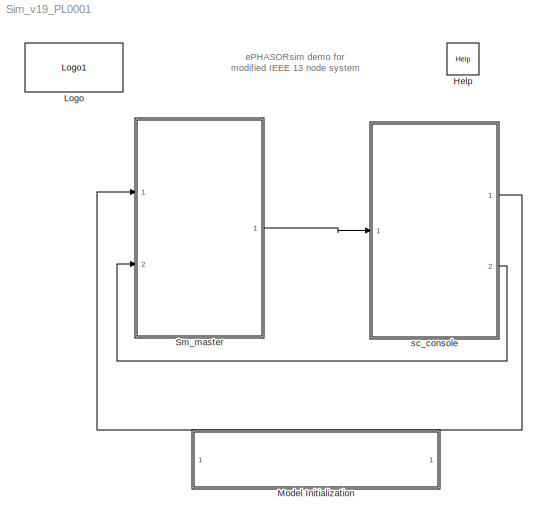
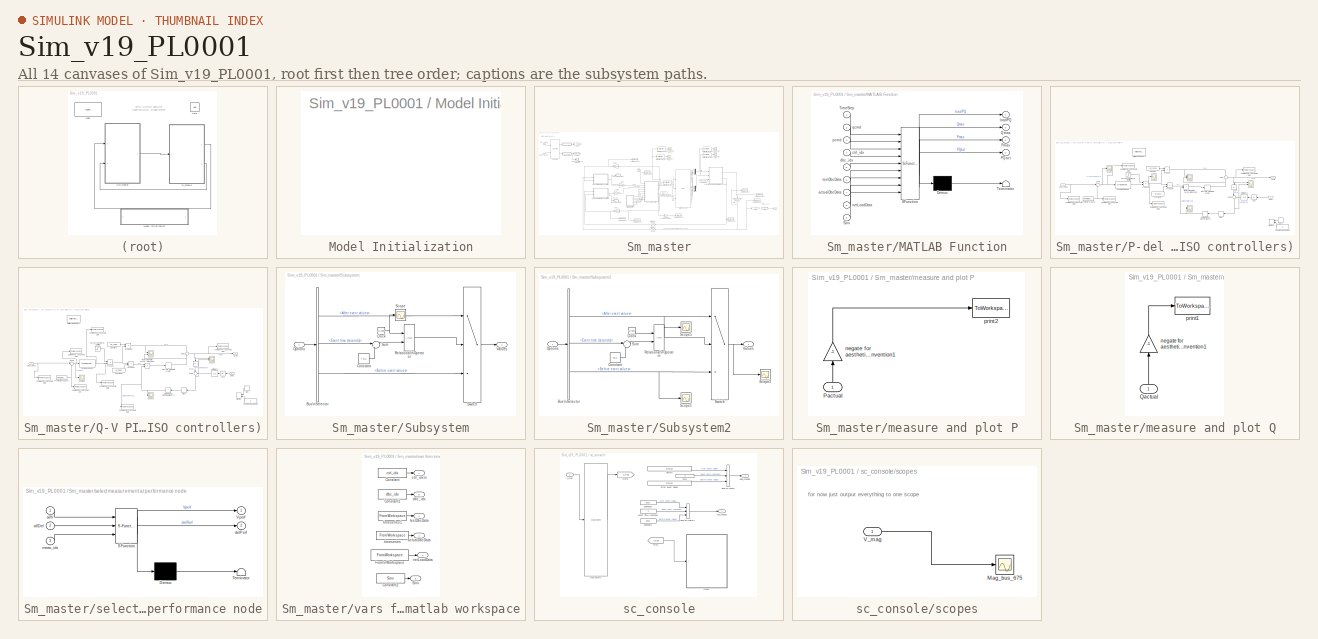
[diagram: thumbnail index - all 14 canvases of the model, root first then tree order]
MODEL Sim_v19_PL0001
KIND model
CONFIG InitFcn = Ts=0.1;
CONFIG PostLoadFcn = Ts=0.1;
CONFIG PreLoadFcn = Ts=0.1;
CONFIG StartFcn = Ts=0.1;
BLOCK [Reference] Help  REF=opal_lib/Help
  Ports = []
  SID = 168
  SourceBlock = opal_lib/Help
  SourceType = OpDoc
  docfile = ../help/ePH_IEEE13.html
BLOCK [Reference] Logo  REF=opal_lib/Logo1
  Ports = []
  SID = 169
  SourceBlock = opal_lib/Logo1
  SourceType = Opal-RT logo
  vide = []
BLOCK [SubSystem] Model Initialization
  CopyFcn = set_param(gcb,'LinkStatus','none')
  Ports = []
  RequestExecContextInheritance = off
  SID = 107
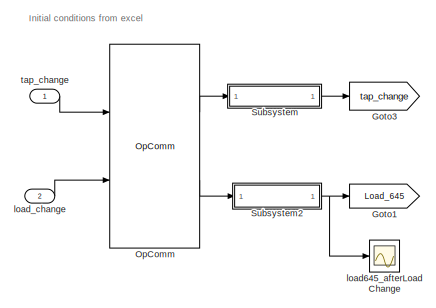
[diagram: Sm_master - part 1/3, top left region]
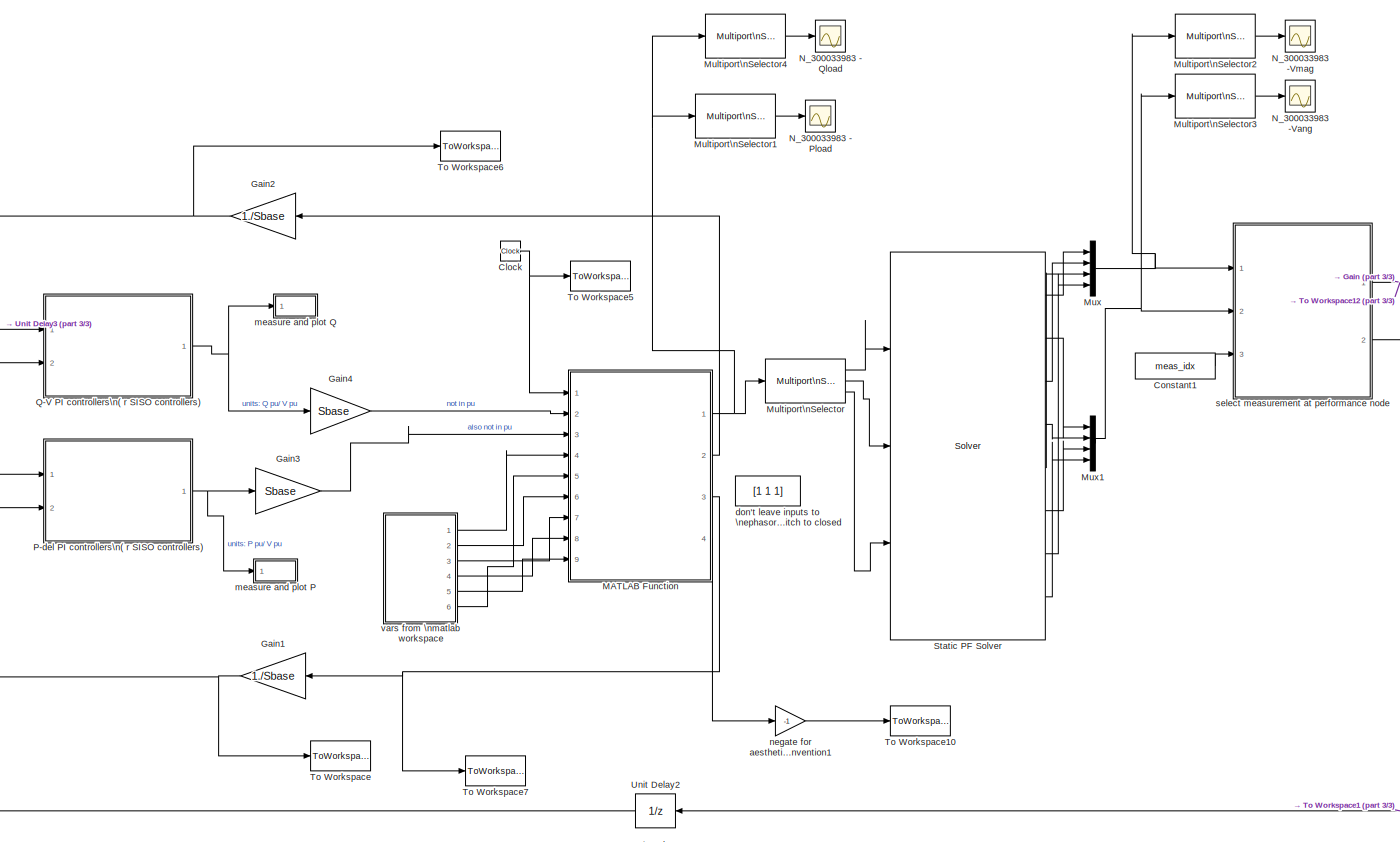
[diagram: Sm_master - part 2/3, center side, full height]
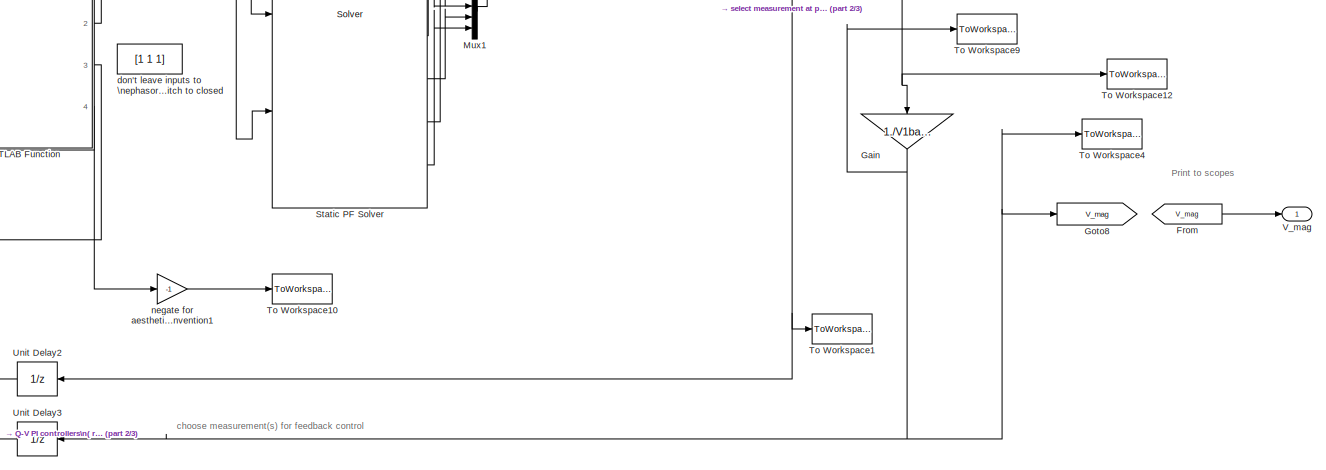
[diagram: Sm_master - part 3/3, bottom right region]
BLOCK [SubSystem] Sm_master
  Ports = [2, 1]
  RequestExecContextInheritance = off
  SID = 44
BLOCK [Clock] Sm_master/Clock
  SID = 2045
BLOCK [Constant] Sm_master/Constant1
  SID = 2028
  Value = meas_idx
BLOCK [From] Sm_master/From
  GotoTag = V_mag
  SID = 533
BLOCK [Gain] Sm_master/Gain
  Gain = 1./V1base
  OutDataTypeStr = Inherit: Inherit via internal rule
  ParamDataTypeStr = Inherit: Inherit via internal rule
  SID = 2368
  SaturateOnIntegerOverflow = off
BLOCK [Gain] Sm_master/Gain1
  Gain = 1./Sbase
  OutDataTypeStr = Inherit: Inherit via internal rule
  ParamDataTypeStr = Inherit: Inherit via internal rule
  SID = 2378
  SaturateOnIntegerOverflow = off
BLOCK [Gain] Sm_master/Gain2
  Gain = 1./Sbase
  OutDataTypeStr = Inherit: Inherit via internal rule
  ParamDataTypeStr = Inherit: Inherit via internal rule
  SID = 2379
  SaturateOnIntegerOverflow = off
BLOCK [Gain] Sm_master/Gain3
  Gain = Sbase
  OutDataTypeStr = Inherit: Inherit via internal rule
  ParamDataTypeStr = Inherit: Inherit via internal rule
  SID = 2374
  SaturateOnIntegerOverflow = off
BLOCK [Gain] Sm_master/Gain4
  Gain = Sbase
  OutDataTypeStr = Inherit: Inherit via internal rule
  ParamDataTypeStr = Inherit: Inherit via internal rule
  SID = 2375
  SaturateOnIntegerOverflow = off
BLOCK [Goto] Sm_master/Goto1
  GotoTag = Load_645
  SID = 538
BLOCK [Goto] Sm_master/Goto3
  GotoTag = tap_change
  SID = 539
BLOCK [Goto] Sm_master/Goto8
  GotoTag = V_mag
  SID = 627
BLOCK [SubSystem] Sm_master/MATLAB Function
  ErrorFcn = Stateflow.Translate.translate
  PermitHierarchicalResolution = ExplicitOnly
  Ports = [9, 4]
  RequestExecContextInheritance = off
  SFBlockType = MATLAB Function
  SID = 1962
  TreatAsAtomicUnit = on
BLOCK [Demux] Sm_master/MATLAB Function/ Demux 
  Outputs = 1
  Ports = [1, 1]
  SID = 1962::17
BLOCK [S-Function] Sm_master/MATLAB Function/ SFunction 
  EnableBusSupport = on
  FunctionName = sf_sfun
  PortCounts = [9 5]
  Ports = [9, 5]
  SID = 1962::16
  Tag = Stateflow S-Function Sim_v19_PL0001 2
BLOCK [Terminator] Sm_master/MATLAB Function/ Terminator 
  SID = 1962::18
BLOCK [Outport] Sm_master/MATLAB Function/PQact
  IconDisplay = Port number
  Port = 4
  SID = 1962::43
BLOCK [Outport] Sm_master/MATLAB Function/Pmax
  IconDisplay = Port number
  Port = 3
  SID = 1962::35
BLOCK [Outport] Sm_master/MATLAB Function/Qmax
  IconDisplay = Port number
  Port = 2
  SID = 1962::36
BLOCK [Inport] Sm_master/MATLAB Function/Sinv
  IconDisplay = Port number
  Port = 9
  SID = 1962::33
BLOCK [Inport] Sm_master/MATLAB Function/TimeStep
  IconDisplay = Port number
  SID = 1962::41
BLOCK [Inport] Sm_master/MATLAB Function/actualDbcData
  IconDisplay = Port number
  Port = 7
  SID = 1962::54
BLOCK [Inport] Sm_master/MATLAB Function/ctrl_idx
  IconDisplay = Port number
  Port = 4
  SID = 1962::28
BLOCK [Inport] Sm_master/MATLAB Function/dbc_idx
  IconDisplay = Port number
  Port = 5
  SID = 1962::45
BLOCK [Outport] Sm_master/MATLAB Function/loadPQ
  IconDisplay = Port number
  SID = 1962::5
BLOCK [Inport] Sm_master/MATLAB Function/netLoadData
  IconDisplay = Port number
  Port = 8
  SID = 1962::31
BLOCK [Inport] Sm_master/MATLAB Function/pcmd
  IconDisplay = Port number
  Port = 3
  SID = 1962::1
BLOCK [Inport] Sm_master/MATLAB Function/qcmd
  IconDisplay = Port number
  Port = 2
  SID = 1962::19
BLOCK [Inport] Sm_master/MATLAB Function/testDbcData
  IconDisplay = Port number
  Port = 6
  SID = 1962::46
BLOCK [Reference] Sm_master/Multiport\nSelector  REF=dspindex/Multiport\nSelector
  Ports = [1, 3]
  SID = 2454
  SourceBlock = dspindex/Multiport\nSelector
  SourceType = Multiport Selector
  idxCellArray = { [1:254], [255: 508], [509:606]}
  idxErrMode = Clip Index
  rowsOrCols = Rows
BLOCK [Reference] Sm_master/Multiport\nSelector1  REF=dspindex/Multiport\nSelector
  Ports = [1, 1]
  SID = 2459
  SourceBlock = dspindex/Multiport\nSelector
  SourceType = Multiport Selector
  idxCellArray = { [1:3]}
  idxErrMode = Clip Index
  rowsOrCols = Rows
BLOCK [Reference] Sm_master/Multiport\nSelector2  REF=dspindex/Multiport\nSelector
  Ports = [1, 1]
  SID = 2460
  SourceBlock = dspindex/Multiport\nSelector
  SourceType = Multiport Selector
  idxCellArray = { [577:579]}
  idxErrMode = Clip Index
  rowsOrCols = Rows
BLOCK [Reference] Sm_master/Multiport\nSelector3  REF=dspindex/Multiport\nSelector
  Ports = [1, 1]
  SID = 2462
  SourceBlock = dspindex/Multiport\nSelector
  SourceType = Multiport Selector
  idxCellArray = { [577:579]}
  idxErrMode = Clip Index
  rowsOrCols = Rows
BLOCK [Reference] Sm_master/Multiport\nSelector4  REF=dspindex/Multiport\nSelector
  Ports = [1, 1]
  SID = 2464
  SourceBlock = dspindex/Multiport\nSelector
  SourceType = Multiport Selector
  idxCellArray = { [304:306]}
  idxErrMode = Clip Index
  rowsOrCols = Rows
BLOCK [Mux] Sm_master/Mux
  DisplayOption = bar
  Ports = [4, 1]
  SID = 2445
BLOCK [Mux] Sm_master/Mux1
  DisplayOption = bar
  Ports = [4, 1]
  SID = 2446
BLOCK [Scope] Sm_master/N_300033983 - Pload
  Floating = off
  NumInputPorts = 1
  Ports = [1]
  SID = 2456
  SaveName = ScopeData5
BLOCK [Scope] Sm_master/N_300033983 - Qload
  Floating = off
  NumInputPorts = 1
  Ports = [1]
  SID = 2465
  SaveName = ScopeData11
BLOCK [Scope] Sm_master/N_300033983 -Vang
  Floating = off
  NumInputPorts = 1
  Ports = [1]
  SID = 2463
  SaveName = ScopeData7
BLOCK [Scope] Sm_master/N_300033983 -Vmag
  Floating = off
  NumInputPorts = 1
  Ports = [1]
  SID = 2461
  SaveName = ScopeData10
BLOCK [Reference] Sm_master/OpComm  REF=rtlab/OpComm
  Interpolation = on
  Missed_Data = off
  Offset = off
  Ports = [2, 2]
  SID = 542
  Samples = off
  Sim_Time = off
  SourceBlock = rtlab/OpComm
  SourceType = RT-LAB OpComm
  Synchronization = on
  Threshold = 1.0
  dynSigOut = off
  from_console = 1
  groupe_acq = 1
  nbport = 2
  st = 0
  subsys_rate = 0
  warning_done = off
  writeOpCommFile = off
BLOCK [SubSystem] Sm_master/P-del PI controllers\n( r SISO controllers)
  Ports = [2, 1]
  RequestExecContextInheritance = off
  SID = 2089
BLOCK [Abs] Sm_master/P-del PI controllers\n( r SISO controllers)/Abs
  SID = 2092
  SaturateOnIntegerOverflow = off
BLOCK [Abs] Sm_master/P-del PI controllers\n( r SISO controllers)/Abs1
  SID = 2332
  SaturateOnIntegerOverflow = off
BLOCK [Constant] Sm_master/P-del PI controllers\n( r SISO controllers)/Constant
  SID = 2093
  Value = Kp_vang
BLOCK [Constant] Sm_master/P-del PI controllers\n( r SISO controllers)/Constant2
  SID = 2094
  Value = Ki_vang
BLOCK [DiscreteIntegrator] Sm_master/P-del PI controllers\n( r SISO controllers)/Discrete-Time\nIntegrator
  InitialConditionSetting = State (most efficient)
  Ports = [1, 2]
  SID = 2399
  SampleTime = Ts
  ShowSaturationPort = on
  gainval = 1
BLOCK [FromWorkspace] Sm_master/P-del PI controllers\n( r SISO controllers)/From\nWorkspace
  SID = 2296
  SampleTime = 0
  VariableName = vang_ref
  ZeroCross = on
BLOCK [Constant] Sm_master/P-del PI controllers\n( r SISO controllers)/If negative sign, output 1
  SID = 2434
  Value = 0
BLOCK [MinMax] Sm_master/P-del PI controllers\n( r SISO controllers)/MinMax1
  Function = max
  InputSameDT = off
  Inputs = 2
  Ports = [2, 1]
  SID = 2435
  SaturateOnIntegerOverflow = off
BLOCK [Reference] Sm_master/P-del PI controllers\n( r SISO controllers)/Multiport\nSelector2  REF=dspindex/Multiport\nSelector
  Ports = [1, 1]
  SID = 2430
  SourceBlock = dspindex/Multiport\nSelector
  SourceType = Multiport Selector
  idxCellArray = {ridx}
  idxErrMode = Clip Index
  rowsOrCols = Columns
BLOCK [Relay] Sm_master/P-del PI controllers\n( r SISO controllers)/Output not sat when input is 0 or 1 
  InputProcessing = Elements as channels (sample based)
  OffSwitchValue = -0.5
  OnSwitchValue = -0.5
  SID = 2433
BLOCK [Outport] Sm_master/P-del PI controllers\n( r SISO controllers)/Pcmd
  IconDisplay = Port number
  SID = 2120
BLOCK [Inport] Sm_master/P-del PI controllers\n( r SISO controllers)/Pmax
  IconDisplay = Port number
  Port = 2
  SID = 2091
BLOCK [Product] Sm_master/P-del PI controllers\n( r SISO controllers)/Product
  InputSameDT = off
  OutDataTypeStr = Inherit: Inherit via internal rule
  Ports = [2, 1]
  RndMeth = Floor
  SID = 2389
  SaturateOnIntegerOverflow = off
BLOCK [Product] Sm_master/P-del PI controllers\n( r SISO controllers)/Product1
  InputSameDT = off
  OutDataTypeStr = Inherit: Inherit via internal rule
  Ports = [2, 1]
  RndMeth = Floor
  SID = 2107
  SaturateOnIntegerOverflow = off
BLOCK [Product] Sm_master/P-del PI controllers\n( r SISO controllers)/Product4
  InputSameDT = off
  OutDataTypeStr = Inherit: Inherit via internal rule
  Ports = [2, 1]
  RndMeth = Floor
  SID = 2109
  SaturateOnIntegerOverflow = off
BLOCK [Scope] Sm_master/P-del PI controllers\n( r SISO controllers)/Scope1
  DataFormat = StructureWithTime
  Floating = off
  LimitDataPoints = off
  NumInputPorts = 2
  Ports = [2]
  SID = 2111
  SaveName = ScopeData8
  ShowLegends = on
  YMax = 6.25~5
  YMin = -46.25~-5
BLOCK [Scope] Sm_master/P-del PI controllers\n( r SISO controllers)/Scope2
  DataFormat = StructureWithTime
  Floating = off
  LimitDataPoints = off
  NumInputPorts = 2
  Ports = [2]
  SID = 2112
  SaveName = ScopeData2
  YMax = 2.625~5
  YMin = -23.625~-5
BLOCK [Scope] Sm_master/P-del PI controllers\n( r SISO controllers)/Scope3
  DataFormat = StructureWithTime
  Floating = off
  LimitDataPoints = off
  NumInputPorts = 1
  Ports = [1]
  SID = 2113
  SaveName = ScopeData9
  ShowLegends = on
  YMax = 1.125
  YMin = -0.125
BLOCK [Scope] Sm_master/P-del PI controllers\n( r SISO controllers)/Scope4
  DataFormat = StructureWithTime
  Floating = off
  LimitDataPoints = off
  NumInputPorts = 1
  Ports = [1]
  SID = 2359
  YMax = 1.125
  YMin = -0.125
BLOCK [Scope] Sm_master/P-del PI controllers\n( r SISO controllers)/Scope5
  DataFormat = StructureWithTime
  Floating = off
  LimitDataPoints = off
  NumInputPorts = 1
  Ports = [1]
  SID = 2385
  SaveName = ScopeData3
  ShowLegends = on
  YMax = 1.125
  YMin = -0.125
BLOCK [Signum] Sm_master/P-del PI controllers\n( r SISO controllers)/Sign1
  SID = 2436
BLOCK [Signum] Sm_master/P-del PI controllers\n( r SISO controllers)/Sign2
  SID = 2440
BLOCK [Sum] Sm_master/P-del PI controllers\n( r SISO controllers)/Sum1
  IconShape = round
  InputSameDT = off
  Inputs = +|+
  OutDataTypeStr = Inherit: Inherit via internal rule
  Ports = [2, 1]
  SID = 2115
  SaturateOnIntegerOverflow = off
BLOCK [Sum] Sm_master/P-del PI controllers\n( r SISO controllers)/Sum3
  IconShape = round
  InputSameDT = off
  Inputs = |-+
  OutDataTypeStr = Inherit: Inherit via internal rule
  Ports = [2, 1]
  SID = 2117
  SaturateOnIntegerOverflow = off
BLOCK [Sum] Sm_master/P-del PI controllers\n( r SISO controllers)/Sum4
  IconShape = round
  InputSameDT = off
  Inputs = |+-
  OutDataTypeStr = Inherit: Inherit via internal rule
  Ports = [2, 1]
  SID = 2303
  SaturateOnIntegerOverflow = off
BLOCK [UnitDelay] Sm_master/P-del PI controllers\n( r SISO controllers)/Unit Delay2
  InitialCondition = Sinv
  InputProcessing = Elements as channels (sample based)
  SID = 2299
  SampleTime = Ts
BLOCK [Inport] Sm_master/P-del PI controllers\n( r SISO controllers)/Vang_meas
  IconDisplay = Port number
  SID = 2090
BLOCK [Reference] Sm_master/P-del PI controllers\n( r SISO controllers)/Variable\nSelector  REF=dspindex/Variable\nSelector
  Elements = [ridx]
  FillMode = on
  FillValues = 0
  IdxMode = Fixed
  NumInputs = 1
  Ports = [1, 1]
  SID = 2429
  ShowPortLabels = off
  SourceBlock = dspindex/Variable\nSelector
  SourceType = Variable Selector
  ZerOneIdxMode = One-based
  errmode = Clip Index
  rowsOrCols = Columns
BLOCK [Product] Sm_master/P-del PI controllers\n( r SISO controllers)/if saturated, mult by zero\n (zero out integrator)
  InputSameDT = off
  OutDataTypeStr = Inherit: Inherit via internal rule
  Ports = [2, 1]
  RndMeth = Floor
  SID = 2118
  SaturateOnIntegerOverflow = off
BLOCK [ToWorkspace] Sm_master/P-del PI controllers\n( r SISO controllers)/sample every second to plot
  MaxDataPoints = inf
  Ports = [1]
  SID = 2119
  SampleTime = -1
  VariableName = vang_ref_sig
BLOCK [ToWorkspace] Sm_master/P-del PI controllers\n( r SISO controllers)/sample every second to plot1
  MaxDataPoints = inf
  Ports = [1]
  SID = 2355
  SampleTime = -1
  VariableName = Pcmd
BLOCK [ToWorkspace] Sm_master/P-del PI controllers\n( r SISO controllers)/sample every second to plot2
  MaxDataPoints = inf
  Ports = [1]
  SID = 2388
  SampleTime = -1
  VariableName = test
BLOCK [ToWorkspace] Sm_master/P-del PI controllers\n( r SISO controllers)/sample every second to plot3
  MaxDataPoints = inf
  Ports = [1]
  SID = 2361
  SampleTime = -1
  VariableName = vang_meas
BLOCK [ToWorkspace] Sm_master/P-del PI controllers\n( r SISO controllers)/sample every second to plot4
  MaxDataPoints = inf
  Ports = [1]
  SID = 2408
  SampleTime = -1
  VariableName = vang_err
BLOCK [Step] Sm_master/P-del PI controllers\n( r SISO controllers)/turn on controller at right time
  SID = 2295
  SampleTime = 0
  Time = Vang_ctrlStart
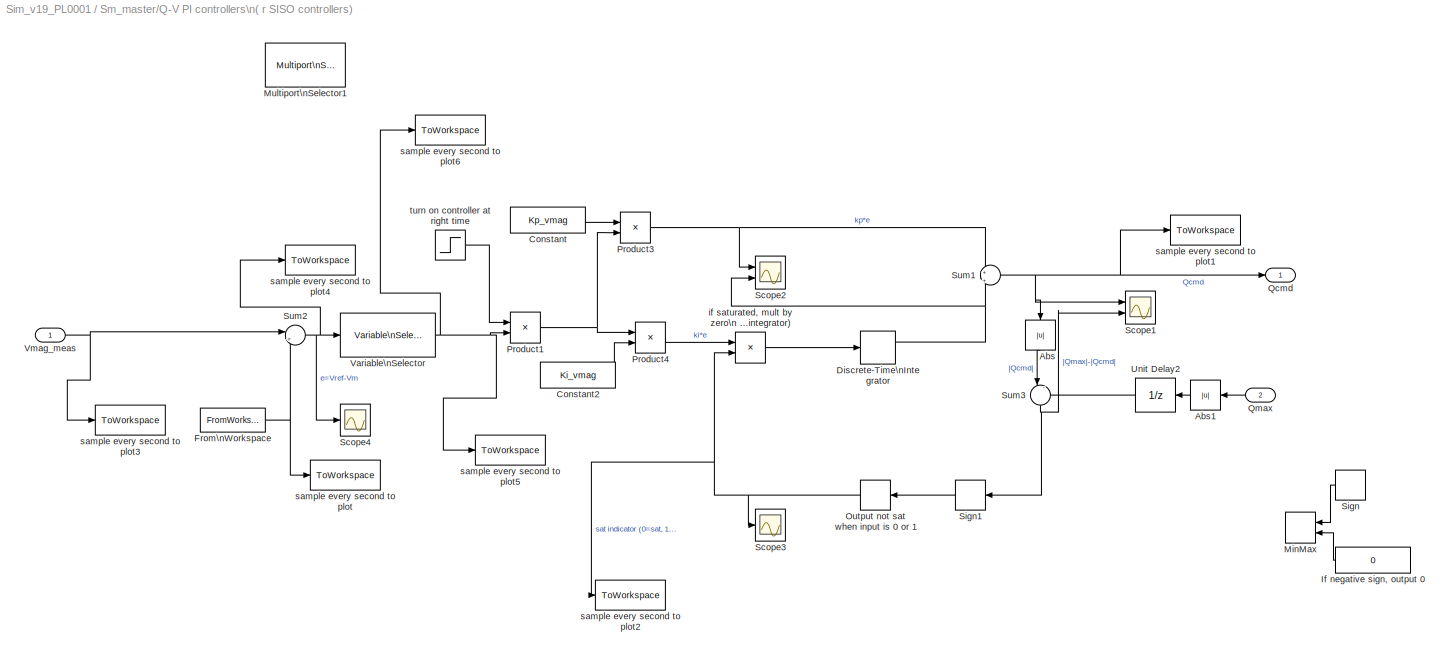
BLOCK [SubSystem] Sm_master/Q-V PI controllers\n( r SISO controllers)
  Ports = [2, 1]
  RequestExecContextInheritance = off
  SID = 2084
BLOCK [Abs] Sm_master/Q-V PI controllers\n( r SISO controllers)/Abs
  SID = 2053
  SaturateOnIntegerOverflow = off
BLOCK [Abs] Sm_master/Q-V PI controllers\n( r SISO controllers)/Abs1
  SID = 2331
  SaturateOnIntegerOverflow = off
BLOCK [Constant] Sm_master/Q-V PI controllers\n( r SISO controllers)/Constant
  SID = 2054
  Value = Kp_vmag
BLOCK [Constant] Sm_master/Q-V PI controllers\n( r SISO controllers)/Constant2
  SID = 2055
  Value = Ki_vmag
BLOCK [DiscreteIntegrator] Sm_master/Q-V PI controllers\n( r SISO controllers)/Discrete-Time\nIntegrator
  InitialConditionSetting = State (most efficient)
  Ports = [1, 2]
  SID = 2400
  SampleTime = Ts
  ShowSaturationPort = on
  gainval = 1
BLOCK [FromWorkspace] Sm_master/Q-V PI controllers\n( r SISO controllers)/From\nWorkspace
  SID = 2297
  SampleTime = 0
  VariableName = vmag_ref
  ZeroCross = on
BLOCK [Constant] Sm_master/Q-V PI controllers\n( r SISO controllers)/If negative sign, output 0
  SID = 2403
  Value = 0
BLOCK [MinMax] Sm_master/Q-V PI controllers\n( r SISO controllers)/MinMax
  Function = max
  InputSameDT = off
  Inputs = 2
  Ports = [2, 1]
  SID = 2402
  SaturateOnIntegerOverflow = off
BLOCK [Reference] Sm_master/Q-V PI controllers\n( r SISO controllers)/Multiport\nSelector1  REF=dspindex/Multiport\nSelector
  Ports = [1, 1]
  SID = 2413
  SourceBlock = dspindex/Multiport\nSelector
  SourceType = Multiport Selector
  idxCellArray = {ridx}
  idxErrMode = Clip Index
  rowsOrCols = Columns
BLOCK [Relay] Sm_master/Q-V PI controllers\n( r SISO controllers)/Output not sat when input is 0 or 1
  InputProcessing = Elements as channels (sample based)
  OffSwitchValue = -0.5
  OnSwitchValue = -0.5
  SID = 2432
BLOCK [Product] Sm_master/Q-V PI controllers\n( r SISO controllers)/Product1
  InputSameDT = off
  OutDataTypeStr = Inherit: Inherit via internal rule
  Ports = [2, 1]
  RndMeth = Floor
  SID = 2069
  SaturateOnIntegerOverflow = off
BLOCK [Product] Sm_master/Q-V PI controllers\n( r SISO controllers)/Product3
  InputSameDT = off
  OutDataTypeStr = Inherit: Inherit via internal rule
  Ports = [2, 1]
  RndMeth = Floor
  SID = 2070
  SaturateOnIntegerOverflow = off
BLOCK [Product] Sm_master/Q-V PI controllers\n( r SISO controllers)/Product4
  InputSameDT = off
  OutDataTypeStr = Inherit: Inherit via internal rule
  Ports = [2, 1]
  RndMeth = Floor
  SID = 2071
  SaturateOnIntegerOverflow = off
BLOCK [Outport] Sm_master/Q-V PI controllers\n( r SISO controllers)/Qcmd
  IconDisplay = Port number
  SID = 2087
BLOCK [Inport] Sm_master/Q-V PI controllers\n( r SISO controllers)/Qmax
  IconDisplay = Port number
  Port = 2
  SID = 2086
BLOCK [Scope] Sm_master/Q-V PI controllers\n( r SISO controllers)/Scope1
  DataFormat = StructureWithTime
  Floating = off
  LimitDataPoints = off
  NumInputPorts = 2
  Ports = [2]
  SID = 2073
  SaveName = ScopeData8
  ShowLegends = on
  YMax = 6.25~5
  YMin = -46.25~-5
BLOCK [Scope] Sm_master/Q-V PI controllers\n( r SISO controllers)/Scope2
  DataFormat = StructureWithTime
  Floating = off
  LimitDataPoints = off
  NumInputPorts = 2
  Ports = [2]
  SID = 2074
  SaveName = ScopeData2
  ShowLegends = on
  YMax = 2.625~5
  YMin = -23.625~-5
BLOCK [Scope] Sm_master/Q-V PI controllers\n( r SISO controllers)/Scope3
  DataFormat = StructureWithTime
  Floating = off
  LimitDataPoints = off
  NumInputPorts = 1
  Ports = [1]
  SID = 2075
  SaveName = ScopeData9
  ShowLegends = on
  YMax = 1.125
  YMin = -0.125
BLOCK [Scope] Sm_master/Q-V PI controllers\n( r SISO controllers)/Scope4
  DataFormat = StructureWithTime
  Floating = off
  LimitDataPoints = off
  NumInputPorts = 1
  Ports = [1]
  SID = 2382
  SaveName = ScopeData4
  ShowLegends = on
  YMax = 1.125
  YMin = -0.125
BLOCK [Signum] Sm_master/Q-V PI controllers\n( r SISO controllers)/Sign
  SID = 2401
BLOCK [Signum] Sm_master/Q-V PI controllers\n( r SISO controllers)/Sign1
  SID = 2439
BLOCK [Sum] Sm_master/Q-V PI controllers\n( r SISO controllers)/Sum1
  IconShape = round
  InputSameDT = off
  Inputs = +|+
  OutDataTypeStr = Inherit: Inherit via internal rule
  Ports = [2, 1]
  SID = 2077
  SaturateOnIntegerOverflow = off
BLOCK [Sum] Sm_master/Q-V PI controllers\n( r SISO controllers)/Sum2
  IconShape = round
  InputSameDT = off
  Inputs = |+-
  OutDataTypeStr = Inherit: Inherit via internal rule
  Ports = [2, 1]
  SID = 2078
  SaturateOnIntegerOverflow = off
BLOCK [Sum] Sm_master/Q-V PI controllers\n( r SISO controllers)/Sum3
  IconShape = round
  InputSameDT = off
  Inputs = |-+
  OutDataTypeStr = Inherit: Inherit via internal rule
  Ports = [2, 1]
  SID = 2079
  SaturateOnIntegerOverflow = off
BLOCK [UnitDelay] Sm_master/Q-V PI controllers\n( r SISO controllers)/Unit Delay2
  InitialCondition = Sinv
  InputProcessing = Elements as channels (sample based)
  SID = 2298
  SampleTime = Ts
BLOCK [Reference] Sm_master/Q-V PI controllers\n( r SISO controllers)/Variable\nSelector  REF=dspindex/Variable\nSelector
  Elements = [ridx]
  FillMode = on
  FillValues = 0
  IdxMode = Fixed
  NumInputs = 1
  Ports = [1, 1]
  SID = 2428
  ShowPortLabels = off
  SourceBlock = dspindex/Variable\nSelector
  SourceType = Variable Selector
  ZerOneIdxMode = One-based
  errmode = Clip Index
  rowsOrCols = Columns
BLOCK [Inport] Sm_master/Q-V PI controllers\n( r SISO controllers)/Vmag_meas
  IconDisplay = Port number
  SID = 2085
BLOCK [Product] Sm_master/Q-V PI controllers\n( r SISO controllers)/if saturated, mult by zero\n (zero out integrator)
  InputSameDT = off
  OutDataTypeStr = Inherit: Inherit via internal rule
  Ports = [2, 1]
  RndMeth = Floor
  SID = 2081
  SaturateOnIntegerOverflow = off
BLOCK [ToWorkspace] Sm_master/Q-V PI controllers\n( r SISO controllers)/sample every second to plot
  MaxDataPoints = inf
  Ports = [1]
  SID = 2082
  SampleTime = -1
  VariableName = vmag_ref_sig
BLOCK [ToWorkspace] Sm_master/Q-V PI controllers\n( r SISO controllers)/sample every second to plot1
  MaxDataPoints = inf
  Ports = [1]
  SID = 2354
  SampleTime = -1
  VariableName = Qcmd
BLOCK [ToWorkspace] Sm_master/Q-V PI controllers\n( r SISO controllers)/sample every second to plot2
  MaxDataPoints = inf
  Ports = [1]
  SID = 2356
  SampleTime = -1
  VariableName = Saturated
BLOCK [ToWorkspace] Sm_master/Q-V PI controllers\n( r SISO controllers)/sample every second to plot3
  MaxDataPoints = inf
  Ports = [1]
  SID = 2360
  SampleTime = -1
  VariableName = vmag_meas
BLOCK [ToWorkspace] Sm_master/Q-V PI controllers\n( r SISO controllers)/sample every second to plot4
  MaxDataPoints = inf
  Ports = [1]
  SID = 2407
  SampleTime = -1
  VariableName = vmag_err
BLOCK [ToWorkspace] Sm_master/Q-V PI controllers\n( r SISO controllers)/sample every second to plot5
  MaxDataPoints = inf
  Ports = [1]
  SID = 2426
  SampleTime = -1
  VariableName = reshape
BLOCK [ToWorkspace] Sm_master/Q-V PI controllers\n( r SISO controllers)/sample every second to plot6
  MaxDataPoints = inf
  Ports = [1]
  SID = 2427
  SampleTime = -1
  VariableName = select_cols
BLOCK [Step] Sm_master/Q-V PI controllers\n( r SISO controllers)/turn on controller at right time
  SID = 2294
  SampleTime = 0
  Time = Vmag_ctrlStart
BLOCK [Reference] Sm_master/Static PF Solver  REF=rtlab_phasor/Solver
  Ports = [3, 8]
  SID = 1569
  SourceBlock = rtlab_phasor/Solver
  builtin = on
  capidir = 'CAPI'
  capiprefix = capicomp_
  cyme = 'ieee13.sxst'
  cyme_pf = ''
  cyme_unbalanced = on
  dt = Ts
  dyr = '4992b.dyr'
  epname = System
  exporty = off
  extension = Excel
  fmudir = 'FMU'
  fmuprefix = fmucomp_
  lazy_netlist = off
  logging = off
  np = 1
  optim_threads = off
  perflog_on = off
  pf_export = on
  pf_flat_start = off
  pf_max_it = 100
  pf_smart_start = off
  pf_tol_v = 0.00001
  powerfactory = 'network.dgs'
  raw = '4992b.raw'
  script_activate_postinit = off
  script_postinit_name = ''
  sim_mode = Dynamic simulation only (without power-flow)
  xls = 'PL0001_OPAL_working_simple.xlsx'
BLOCK [SubSystem] Sm_master/Subsystem
  Ports = [1, 1]
  RequestExecContextInheritance = off
  SID = 544
BLOCK [BusSelector] Sm_master/Subsystem/Bus\nSelector
  OutputSignals = After event values,Event time (seconds),Before event values
  Ports = [1, 3]
  SID = 546
BLOCK [Clock] Sm_master/Subsystem/Clock
  Decimation = 1
  SID = 547
BLOCK [Constant] Sm_master/Subsystem/Constant
  SID = 548
  Value = Ts/2
BLOCK [Inport] Sm_master/Subsystem/Options
  IconDisplay = Port number
  SID = 545
BLOCK [RelationalOperator] Sm_master/Subsystem/Relational\nOperator
  InputSameDT = off
  OutDataTypeStr = boolean
  Ports = [2, 1]
  SID = 549
BLOCK [Scope] Sm_master/Subsystem/Scope
  Floating = off
  NumInputPorts = 1
  Ports = [1]
  SID = 550
  SaveName = ScopeData1
BLOCK [Sum] Sm_master/Subsystem/Sum
  IconShape = round
  InputSameDT = off
  Inputs = |+-
  OutDataTypeStr = Inherit: Inherit via internal rule
  Ports = [2, 1]
  SID = 551
  SaturateOnIntegerOverflow = off
BLOCK [Switch] Sm_master/Subsystem/Switch
  InputSameDT = off
  SID = 552
  SaturateOnIntegerOverflow = off
  Threshold = 0.5
BLOCK [Outport] Sm_master/Subsystem/Values
  IconDisplay = Port number
  SID = 553
BLOCK [SubSystem] Sm_master/Subsystem2
  Ports = [1, 1]
  RequestExecContextInheritance = off
  SID = 554
BLOCK [BusSelector] Sm_master/Subsystem2/Bus\nSelector
  OutputSignals = After event values,Event time (seconds),Before event values
  Ports = [1, 3]
  SID = 556
BLOCK [Clock] Sm_master/Subsystem2/Clock
  Decimation = 1
  SID = 557
BLOCK [Constant] Sm_master/Subsystem2/Constant
  SID = 558
  Value = Ts/2
BLOCK [Inport] Sm_master/Subsystem2/Options
  IconDisplay = Port number
  SID = 555
BLOCK [RelationalOperator] Sm_master/Subsystem2/Relational\nOperator
  InputSameDT = off
  OutDataTypeStr = boolean
  Ports = [2, 1]
  SID = 559
BLOCK [Scope] Sm_master/Subsystem2/Scope1
  DataFormat = StructureWithTime
  Floating = off
  LimitDataPoints = off
  NumInputPorts = 1
  Ports = [1]
  SID = 560
  SampleTime = 0
  SaveName = ScopeData14
  ZoomMode = yonly
BLOCK [Scope] Sm_master/Subsystem2/Scope2
  DataFormat = StructureWithTime
  Floating = off
  LimitDataPoints = off
  NumInputPorts = 1
  Ports = [1]
  SID = 561
  SampleTime = 0
  SaveName = ScopeData15
  ZoomMode = yonly
BLOCK [Scope] Sm_master/Subsystem2/Scope5
  DataFormat = StructureWithTime
  Floating = off
  LimitDataPoints = off
  NumInputPorts = 1
  Ports = [1]
  SID = 562
  SampleTime = 0
  SaveName = ScopeData13
  ZoomMode = yonly
BLOCK [Sum] Sm_master/Subsystem2/Sum
  IconShape = round
  InputSameDT = off
  Inputs = |+-
  OutDataTypeStr = Inherit: Inherit via internal rule
  Ports = [2, 1]
  SID = 563
  SaturateOnIntegerOverflow = off
BLOCK [Switch] Sm_master/Subsystem2/Switch
  InputSameDT = off
  SID = 564
  SaturateOnIntegerOverflow = off
  Threshold = 0.5
BLOCK [Outport] Sm_master/Subsystem2/Values
  IconDisplay = Port number
  SID = 565
BLOCK [ToWorkspace] Sm_master/To Workspace
  FixptAsFi = on
  MaxDataPoints = inf
  Ports = [1]
  SID = 2306
  SampleTime = -1
  Save2DSignal = 3-D array (concatenate along third dimension)
  VariableName = Pmax
BLOCK [ToWorkspace] Sm_master/To Workspace1
  MaxDataPoints = inf
  Ports = [1]
  SID = 905
  SampleTime = -1
  Save2DSignal = 2-D array (concatenate along first dimension)
  VariableName = vang_new
BLOCK [ToWorkspace] Sm_master/To Workspace10
  FixptAsFi = on
  MaxDataPoints = inf
  Ports = [1]
  SID = 2362
  SampleTime = -1
  Save2DSignal = 3-D array (concatenate along third dimension)
  VariableName = PQact
BLOCK [ToWorkspace] Sm_master/To Workspace12
  MaxDataPoints = inf
  Ports = [1]
  SID = 2380
  SampleTime = -1
  Save2DSignal = 2-D array (concatenate along first dimension)
  VariableName = Vperf1
BLOCK [ToWorkspace] Sm_master/To Workspace4
  MaxDataPoints = inf
  Ports = [1]
  SID = 569
  SampleTime = -1
  Save2DSignal = 2-D array (concatenate along first dimension)
  VariableName = vmag_new
BLOCK [ToWorkspace] Sm_master/To Workspace5
  MaxDataPoints = inf
  Ports = [1]
  SID = 2046
  SampleTime = -1
  Save2DSignal = 2-D array (concatenate along first dimension)
  VariableName = t
BLOCK [ToWorkspace] Sm_master/To Workspace6
  FixptAsFi = on
  MaxDataPoints = inf
  Ports = [1]
  SID = 2307
  SampleTime = -1
  Save2DSignal = 3-D array (concatenate along third dimension)
  VariableName = Qmax
BLOCK [ToWorkspace] Sm_master/To Workspace7
  FixptAsFi = on
  MaxDataPoints = inf
  Ports = [1]
  SID = 2384
  SampleTime = -1
  Save2DSignal = 3-D array (concatenate along third dimension)
  VariableName = Pmax1
BLOCK [ToWorkspace] Sm_master/To Workspace9
  MaxDataPoints = inf
  Ports = [1]
  SID = 2322
  SampleTime = -1
  Save2DSignal = 2-D array (concatenate along first dimension)
  VariableName = Vperf
BLOCK [UnitDelay] Sm_master/Unit Delay2
  InitialCondition = vang_init_actual
  InputProcessing = Elements as channels (sample based)
  SID = 1491
  SampleTime = Ts
BLOCK [UnitDelay] Sm_master/Unit Delay3
  InitialCondition = vmag_init_actual
  InputProcessing = Elements as channels (sample based)
  SID = 1492
  SampleTime = Ts
BLOCK [Outport] Sm_master/V_mag
  IconDisplay = Port number
  SID = 593
BLOCK [Constant] Sm_master/don't leave inputs to \nephasorsim open, \ntakes on default val of 0\n[1 1 1] sets default switch to closed
  SID = 2409
  Value = [1 1 1]
BLOCK [Scope] Sm_master/load645_afterLoadChange
  Floating = off
  LegendLocations = 0.6649     0.75575     0.26032     0.11379
  NumInputPorts = 1
  Ports = [1]
  SID = 944
  SaveName = ScopeData17
  ShowLegends = on
  YMax = 1.0518
  YMin = 0.94469
BLOCK [Inport] Sm_master/load_change
  IconDisplay = Port number
  Port = 2
  SID = 528
BLOCK [SubSystem] Sm_master/measure and plot P
  Ports = [1]
  RequestExecContextInheritance = off
  SID = 2036
BLOCK [Inport] Sm_master/measure and plot P/Pactual
  IconDisplay = Port number
  SID = 2037
BLOCK [Gain] Sm_master/measure and plot P/negate for aesthetic\n sign convention1
  Gain = -1
  OutDataTypeStr = Inherit: Inherit via internal rule
  ParamDataTypeStr = Inherit: Inherit via internal rule
  SID = 2302
  SaturateOnIntegerOverflow = off
BLOCK [ToWorkspace] Sm_master/measure and plot P/print2
  MaxDataPoints = inf
  Ports = [1]
  SID = 2040
  SampleTime = -1
  Save2DSignal = 2-D array (concatenate along first dimension)
  VariableName = pnew
BLOCK [SubSystem] Sm_master/measure and plot Q
  Ports = [1]
  RequestExecContextInheritance = off
  SID = 2031
BLOCK [Inport] Sm_master/measure and plot Q/Qactual
  IconDisplay = Port number
  SID = 2032
BLOCK [Gain] Sm_master/measure and plot Q/negate for aesthetic\n sign convention1
  Gain = -1
  OutDataTypeStr = Inherit: Inherit via internal rule
  ParamDataTypeStr = Inherit: Inherit via internal rule
  SID = 2301
  SaturateOnIntegerOverflow = off
BLOCK [ToWorkspace] Sm_master/measure and plot Q/print1
  MaxDataPoints = inf
  Ports = [1]
  SID = 2034
  SampleTime = -1
  Save2DSignal = 2-D array (concatenate along first dimension)
  VariableName = qnew
BLOCK [Gain] Sm_master/negate for aesthetic\n sign convention1
  Gain = -1
  OutDataTypeStr = Inherit: Inherit via internal rule
  ParamDataTypeStr = Inherit: Inherit via internal rule
  SID = 2455
  SaturateOnIntegerOverflow = off
BLOCK [SubSystem] Sm_master/select measurement at performance node
  ErrorFcn = Stateflow.Translate.translate
  PermitHierarchicalResolution = ExplicitOnly
  Ports = [3, 2]
  RequestExecContextInheritance = off
  SFBlockType = MATLAB Function
  SID = 1963
  TreatAsAtomicUnit = on
BLOCK [Demux] Sm_master/select measurement at performance node/ Demux 
  Outputs = 1
  Ports = [1, 1]
  SID = 1963::17
BLOCK [S-Function] Sm_master/select measurement at performance node/ SFunction 
  EnableBusSupport = on
  FunctionName = sf_sfun
  PortCounts = [3 3]
  Ports = [3, 3]
  SID = 1963::16
  Tag = Stateflow S-Function Sim_v19_PL0001 1
BLOCK [Terminator] Sm_master/select measurement at performance node/ Terminator 
  SID = 1963::18
BLOCK [Outport] Sm_master/select measurement at performance node/Vperf
  IconDisplay = Port number
  SID = 1963::5
BLOCK [Inport] Sm_master/select measurement at performance node/allDel
  IconDisplay = Port number
  Port = 2
  SID = 1963::20
BLOCK [Inport] Sm_master/select measurement at performance node/allV
  IconDisplay = Port number
  SID = 1963::19
BLOCK [Outport] Sm_master/select measurement at performance node/delPerf
  IconDisplay = Port number
  Port = 2
  SID = 1963::21
BLOCK [Inport] Sm_master/select measurement at performance node/meas_idx
  IconDisplay = Port number
  Port = 3
  SID = 1963::23
BLOCK [Inport] Sm_master/tap_change
  IconDisplay = Port number
  SID = 527
BLOCK [SubSystem] Sm_master/vars from \nmatlab workspace
  Ports = [0, 6]
  RequestExecContextInheritance = off
  SID = 2015
BLOCK [Constant] Sm_master/vars from \nmatlab workspace/Constant
  SID = 2023
  Value = ctrl_idx
BLOCK [Constant] Sm_master/vars from \nmatlab workspace/Constant1
  SID = 2024
  Value = dbc_idx
BLOCK [Constant] Sm_master/vars from \nmatlab workspace/Constant2
  SID = 2051
  Value = Sinv
BLOCK [FromWorkspace] Sm_master/vars from \nmatlab workspace/From\nWorkspace
  Interpolate = off
  OutDataTypeStr = double
  OutputAfterFinalValue = Holding final value
  SID = 2029
  VariableName = netLoadData_snippet
  ZeroCross = on
BLOCK [Outport] Sm_master/vars from \nmatlab workspace/Sinv
  IconDisplay = Port number
  Port = 5
  SID = 2052
BLOCK [Outport] Sm_master/vars from \nmatlab workspace/actualDbcData
  IconDisplay = Port number
  Port = 3
  SID = 2048
BLOCK [Outport] Sm_master/vars from \nmatlab workspace/ctrl_idx\n
  IconDisplay = Port number
  SID = 2017
BLOCK [Outport] Sm_master/vars from \nmatlab workspace/dbc_idx
  IconDisplay = Port number
  Port = 6
  SID = 2377
BLOCK [Outport] Sm_master/vars from \nmatlab workspace/netLoadData
  IconDisplay = Port number
  Port = 4
  SID = 2030
BLOCK [Outport] Sm_master/vars from \nmatlab workspace/testDbcData
  IconDisplay = Port number
  Port = 2
  SID = 2019
BLOCK [FromWorkspace] Sm_master/vars from \nmatlab workspace/timeseries
  Interpolate = off
  OutputAfterFinalValue = Holding final value
  SID = 2013
  VariableName = actualDbcData
  ZeroCross = on
BLOCK [FromWorkspace] Sm_master/vars from \nmatlab workspace/timeseries1
  Interpolate = off
  OutDataTypeStr = double
  OutputAfterFinalValue = Holding final value
  SID = 2047
  VariableName = testDbcData
  ZeroCross = on
BLOCK [SubSystem] sc_console
  Ports = [1, 2]
  RequestExecContextInheritance = off
  SID = 60
BLOCK [BusCreator] sc_console/Bus\nCreator
  DisplayOption = bar
  Inputs = 3
  Ports = [3, 1]
  SID = 111
BLOCK [BusCreator] sc_console/Bus\nCreator1
  DisplayOption = bar
  Inputs = 3
  Ports = [3, 1]
  SID = 112
BLOCK [Constant] sc_console/Event Time (seconds)
  SID = 113
  Value = 0
BLOCK [From] sc_console/From
  GotoTag = V_mag
  SID = 114
BLOCK [Goto] sc_console/Goto1
  GotoTag = V_mag
  SID = 117
BLOCK [Constant] sc_console/LineFault0
  SID = 120
  Value = [0 0 0]
BLOCK [Constant] sc_console/LineFault1
  SID = 121
  Value = [0 0 0]
BLOCK [Reference] sc_console/OpComm1  REF=rtlab/OpComm
  Interpolation = on
  Missed_Data = off
  Offset = off
  Ports = [1, 1]
  SID = 122
  Samples = off
  Sim_Time = off
  SourceBlock = rtlab/OpComm
  SourceType = RT-LAB OpComm
  Synchronization = on
  Threshold = 1.0
  dynSigOut = off
  from_console = 0
  groupe_acq = 1
  nbport = 1
  st = 0
  subsys_rate = 0
  warning_done = off
  writeOpCommFile = off
BLOCK [Inport] sc_console/V_mag
  IconDisplay = Port number
  SID = 108
BLOCK [Constant] sc_console/after event values
  SID = 123
  Value = [170,125]
BLOCK [Constant] sc_console/before
  SID = 124
  Value = [170,125]
BLOCK [Outport] sc_console/load_change
  IconDisplay = Port number
  Port = 2
  SID = 148
BLOCK [SubSystem] sc_console/scopes
  Ports = [1]
  RequestExecContextInheritance = off
  SID = 125
BLOCK [Scope] sc_console/scopes/Mag_bus_675
  DataFormat = StructureWithTime
  Floating = off
  LimitDataPoints = off
  NumInputPorts = 1
  Ports = [1]
  SID = 136
  SampleTime = 0
  SaveName = ScopeData6
  YMax = 1.07
  YMin = 0.92
  ZoomMode = yonly
BLOCK [Inport] sc_console/scopes/V_mag
  IconDisplay = Port number
  SID = 126
BLOCK [Outport] sc_console/tap_change
  IconDisplay = Port number
  SID = 147
BLOCK [Constant] sc_console/time
  SID = 146
  Value = 0
ANNOTATION (root): ePHASORsim demo for \nmodified IEEE 13 node system
ANNOTATION Sm_master: \n \n Initial conditions from excel
ANNOTATION Sm_master: \n \n Print to scopes
ANNOTATION Sm_master: \n \n
ANNOTATION Sm_master: choose measurement(s) for feedback control
ANNOTATION sc_console/scopes: for now just output everything to one scope
NET Sm_master/Clock:1 -> Sm_master/MATLAB Function:1, Sm_master/To Workspace5:1
LINE Sm_master/Constant1:1 -> Sm_master/select measurement at performance node:3
LINE Sm_master/From:1 -> Sm_master/V_mag:1
NET Sm_master/Gain1:1 -> Sm_master/P-del PI controllers\n( r SISO controllers):2, Sm_master/To Workspace:1
NET Sm_master/Gain2:1 -> Sm_master/Q-V PI controllers\n( r SISO controllers):2, Sm_master/To Workspace6:1
LINE Sm_master/Gain3:1 -> Sm_master/MATLAB Function:3
LINE Sm_master/Gain4:1 -> Sm_master/MATLAB Function:2
NET Sm_master/Gain:1 -> Sm_master/Goto8:1, Sm_master/To Workspace4:1, Sm_master/To Workspace9:1, Sm_master/Unit Delay3:1
LINE Sm_master/MATLAB Function/ Demux :1 -> Sm_master/MATLAB Function/ Terminator :1
LINE Sm_master/MATLAB Function/ SFunction :1 -> Sm_master/MATLAB Function/ Demux :1
LINE Sm_master/MATLAB Function/ SFunction :2 -> Sm_master/MATLAB Function/loadPQ:1
LINE Sm_master/MATLAB Function/ SFunction :3 -> Sm_master/MATLAB Function/Qmax:1
LINE Sm_master/MATLAB Function/ SFunction :4 -> Sm_master/MATLAB Function/Pmax:1
LINE Sm_master/MATLAB Function/ SFunction :5 -> Sm_master/MATLAB Function/PQact:1
LINE Sm_master/MATLAB Function/Sinv:1 -> Sm_master/MATLAB Function/ SFunction :9
LINE Sm_master/MATLAB Function/TimeStep:1 -> Sm_master/MATLAB Function/ SFunction :1
LINE Sm_master/MATLAB Function/actualDbcData:1 -> Sm_master/MATLAB Function/ SFunction :7
LINE Sm_master/MATLAB Function/ctrl_idx:1 -> Sm_master/MATLAB Function/ SFunction :4
LINE Sm_master/MATLAB Function/dbc_idx:1 -> Sm_master/MATLAB Function/ SFunction :5
LINE Sm_master/MATLAB Function/netLoadData:1 -> Sm_master/MATLAB Function/ SFunction :8
LINE Sm_master/MATLAB Function/pcmd:1 -> Sm_master/MATLAB Function/ SFunction :3
LINE Sm_master/MATLAB Function/qcmd:1 -> Sm_master/MATLAB Function/ SFunction :2
LINE Sm_master/MATLAB Function/testDbcData:1 -> Sm_master/MATLAB Function/ SFunction :6
NET Sm_master/MATLAB Function:1 -> Sm_master/Multiport\nSelector1:1, Sm_master/Multiport\nSelector4:1, Sm_master/Multiport\nSelector:1
LINE Sm_master/MATLAB Function:2 -> Sm_master/Gain2:1
NET Sm_master/MATLAB Function:3 -> Sm_master/Gain1:1, Sm_master/To Workspace7:1
LINE Sm_master/MATLAB Function:4 -> Sm_master/negate for aesthetic\n sign convention1:1
LINE Sm_master/Multiport\nSelector1:1 -> Sm_master/N_300033983 - Pload:1
LINE Sm_master/Multiport\nSelector2:1 -> Sm_master/N_300033983 -Vmag:1
LINE Sm_master/Multiport\nSelector3:1 -> Sm_master/N_300033983 -Vang:1
LINE Sm_master/Multiport\nSelector4:1 -> Sm_master/N_300033983 - Qload:1
LINE Sm_master/Multiport\nSelector:1 -> Sm_master/Static PF Solver:1
LINE Sm_master/Multiport\nSelector:2 -> Sm_master/Static PF Solver:2
LINE Sm_master/Multiport\nSelector:3 -> Sm_master/Static PF Solver:3
NET Sm_master/Mux1:1 -> Sm_master/Multiport\nSelector3:1, Sm_master/select measurement at performance node:2
NET Sm_master/Mux:1 -> Sm_master/Multiport\nSelector2:1, Sm_master/select measurement at performance node:1
LINE Sm_master/OpComm:1 -> Sm_master/Subsystem:1
LINE Sm_master/OpComm:2 -> Sm_master/Subsystem2:1
LINE Sm_master/P-del PI controllers\n( r SISO controllers)/Abs1:1 -> Sm_master/P-del PI controllers\n( r SISO controllers)/Unit Delay2:1
LINE Sm_master/P-del PI controllers\n( r SISO controllers)/Abs:1 -> Sm_master/P-del PI controllers\n( r SISO controllers)/Sum3:1
LINE Sm_master/P-del PI controllers\n( r SISO controllers)/Constant2:1 -> Sm_master/P-del PI controllers\n( r SISO controllers)/Product4:2
LINE Sm_master/P-del PI controllers\n( r SISO controllers)/Constant:1 -> Sm_master/P-del PI controllers\n( r SISO controllers)/Product:1
NET Sm_master/P-del PI controllers\n( r SISO controllers)/Discrete-Time\nIntegrator:1 -> Sm_master/P-del PI controllers\n( r SISO controllers)/Scope2:2, Sm_master/P-del PI controllers\n( r SISO controllers)/Sum1:2
NET Sm_master/P-del PI controllers\n( r SISO controllers)/From\nWorkspace:1 -> Sm_master/P-del PI controllers\n( r SISO controllers)/Sum4:2, Sm_master/P-del PI controllers\n( r SISO controllers)/sample every second to plot:1
LINE Sm_master/P-del PI controllers\n( r SISO controllers)/If negative sign, output 1:1 -> Sm_master/P-del PI controllers\n( r SISO controllers)/MinMax1:2
NET Sm_master/P-del PI controllers\n( r SISO controllers)/Output not sat when input is 0 or 1 :1 -> Sm_master/P-del PI controllers\n( r SISO controllers)/Scope3:1, Sm_master/P-del PI controllers\n( r SISO controllers)/if saturated, mult by zero\n (zero out integrator):2
LINE Sm_master/P-del PI controllers\n( r SISO controllers)/Pmax:1 -> Sm_master/P-del PI controllers\n( r SISO controllers)/Abs1:1
NET Sm_master/P-del PI controllers\n( r SISO controllers)/Product1:1 -> Sm_master/P-del PI controllers\n( r SISO controllers)/Product4:1, Sm_master/P-del PI controllers\n( r SISO controllers)/Product:2, Sm_master/P-del PI controllers\n( r SISO controllers)/Scope5:1, Sm_master/P-del PI controllers\n( r SISO controllers)/sample every second to plot2:1
LINE Sm_master/P-del PI controllers\n( r SISO controllers)/Product4:1 -> Sm_master/P-del PI controllers\n( r SISO controllers)/if saturated, mult by zero\n (zero out integrator):1
NET Sm_master/P-del PI controllers\n( r SISO controllers)/Product:1 -> Sm_master/P-del PI controllers\n( r SISO controllers)/Scope2:1, Sm_master/P-del PI controllers\n( r SISO controllers)/Sum1:1
LINE Sm_master/P-del PI controllers\n( r SISO controllers)/Sign1:1 -> Sm_master/P-del PI controllers\n( r SISO controllers)/MinMax1:1
LINE Sm_master/P-del PI controllers\n( r SISO controllers)/Sign2:1 -> Sm_master/P-del PI controllers\n( r SISO controllers)/Output not sat when input is 0 or 1 :1
NET Sm_master/P-del PI controllers\n( r SISO controllers)/Sum1:1 -> Sm_master/P-del PI controllers\n( r SISO controllers)/Abs:1, Sm_master/P-del PI controllers\n( r SISO controllers)/Pcmd:1, Sm_master/P-del PI controllers\n( r SISO controllers)/Scope1:1, Sm_master/P-del PI controllers\n( r SISO controllers)/sample every second to plot1:1
NET Sm_master/P-del PI controllers\n( r SISO controllers)/Sum3:1 -> Sm_master/P-del PI controllers\n( r SISO controllers)/Scope1:2, Sm_master/P-del PI controllers\n( r SISO controllers)/Sign2:1
NET Sm_master/P-del PI controllers\n( r SISO controllers)/Sum4:1 -> Sm_master/P-del PI controllers\n( r SISO controllers)/Scope4:1, Sm_master/P-del PI controllers\n( r SISO controllers)/Variable\nSelector:1, Sm_master/P-del PI controllers\n( r SISO controllers)/sample every second to plot4:1
LINE Sm_master/P-del PI controllers\n( r SISO controllers)/Unit Delay2:1 -> Sm_master/P-del PI controllers\n( r SISO controllers)/Sum3:2
NET Sm_master/P-del PI controllers\n( r SISO controllers)/Vang_meas:1 -> Sm_master/P-del PI controllers\n( r SISO controllers)/Sum4:1, Sm_master/P-del PI controllers\n( r SISO controllers)/sample every second to plot3:1
LINE Sm_master/P-del PI controllers\n( r SISO controllers)/Variable\nSelector:1 -> Sm_master/P-del PI controllers\n( r SISO controllers)/Product1:2
LINE Sm_master/P-del PI controllers\n( r SISO controllers)/if saturated, mult by zero\n (zero out integrator):1 -> Sm_master/P-del PI controllers\n( r SISO controllers)/Discrete-Time\nIntegrator:1
LINE Sm_master/P-del PI controllers\n( r SISO controllers)/turn on controller at right time:1 -> Sm_master/P-del PI controllers\n( r SISO controllers)/Product1:1
NET Sm_master/P-del PI controllers\n( r SISO controllers):1 -> Sm_master/Gain3:1, Sm_master/measure and plot P:1
LINE Sm_master/Q-V PI controllers\n( r SISO controllers)/Abs1:1 -> Sm_master/Q-V PI controllers\n( r SISO controllers)/Unit Delay2:1
LINE Sm_master/Q-V PI controllers\n( r SISO controllers)/Abs:1 -> Sm_master/Q-V PI controllers\n( r SISO controllers)/Sum3:1
LINE Sm_master/Q-V PI controllers\n( r SISO controllers)/Constant2:1 -> Sm_master/Q-V PI controllers\n( r SISO controllers)/Product4:2
LINE Sm_master/Q-V PI controllers\n( r SISO controllers)/Constant:1 -> Sm_master/Q-V PI controllers\n( r SISO controllers)/Product3:1
NET Sm_master/Q-V PI controllers\n( r SISO controllers)/Discrete-Time\nIntegrator:1 -> Sm_master/Q-V PI controllers\n( r SISO controllers)/Scope2:2, Sm_master/Q-V PI controllers\n( r SISO controllers)/Sum1:2
NET Sm_master/Q-V PI controllers\n( r SISO controllers)/From\nWorkspace:1 -> Sm_master/Q-V PI controllers\n( r SISO controllers)/Sum2:2, Sm_master/Q-V PI controllers\n( r SISO controllers)/sample every second to plot:1
LINE Sm_master/Q-V PI controllers\n( r SISO controllers)/If negative sign, output 0:1 -> Sm_master/Q-V PI controllers\n( r SISO controllers)/MinMax:2
NET Sm_master/Q-V PI controllers\n( r SISO controllers)/Output not sat when input is 0 or 1:1 -> Sm_master/Q-V PI controllers\n( r SISO controllers)/Scope3:1, Sm_master/Q-V PI controllers\n( r SISO controllers)/if saturated, mult by zero\n (zero out integrator):2, Sm_master/Q-V PI controllers\n( r SISO controllers)/sample every second to plot2:1
NET Sm_master/Q-V PI controllers\n( r SISO controllers)/Product1:1 -> Sm_master/Q-V PI controllers\n( r SISO controllers)/Product3:2, Sm_master/Q-V PI controllers\n( r SISO controllers)/Product4:1
NET Sm_master/Q-V PI controllers\n( r SISO controllers)/Product3:1 -> Sm_master/Q-V PI controllers\n( r SISO controllers)/Scope2:1, Sm_master/Q-V PI controllers\n( r SISO controllers)/Sum1:1
LINE Sm_master/Q-V PI controllers\n( r SISO controllers)/Product4:1 -> Sm_master/Q-V PI controllers\n( r SISO controllers)/if saturated, mult by zero\n (zero out integrator):1
LINE Sm_master/Q-V PI controllers\n( r SISO controllers)/Qmax:1 -> Sm_master/Q-V PI controllers\n( r SISO controllers)/Abs1:1
LINE Sm_master/Q-V PI controllers\n( r SISO controllers)/Sign1:1 -> Sm_master/Q-V PI controllers\n( r SISO controllers)/Output not sat when input is 0 or 1:1
LINE Sm_master/Q-V PI controllers\n( r SISO controllers)/Sign:1 -> Sm_master/Q-V PI controllers\n( r SISO controllers)/MinMax:1
NET Sm_master/Q-V PI controllers\n( r SISO controllers)/Sum1:1 -> Sm_master/Q-V PI controllers\n( r SISO controllers)/Abs:1, Sm_master/Q-V PI controllers\n( r SISO controllers)/Qcmd:1, Sm_master/Q-V PI controllers\n( r SISO controllers)/Scope1:1, Sm_master/Q-V PI controllers\n( r SISO controllers)/sample every second to plot1:1
NET Sm_master/Q-V PI controllers\n( r SISO controllers)/Sum2:1 -> Sm_master/Q-V PI controllers\n( r SISO controllers)/Scope4:1, Sm_master/Q-V PI controllers\n( r SISO controllers)/Variable\nSelector:1, Sm_master/Q-V PI controllers\n( r SISO controllers)/sample every second to plot4:1
NET Sm_master/Q-V PI controllers\n( r SISO controllers)/Sum3:1 -> Sm_master/Q-V PI controllers\n( r SISO controllers)/Scope1:2, Sm_master/Q-V PI controllers\n( r SISO controllers)/Sign1:1
LINE Sm_master/Q-V PI controllers\n( r SISO controllers)/Unit Delay2:1 -> Sm_master/Q-V PI controllers\n( r SISO controllers)/Sum3:2
NET Sm_master/Q-V PI controllers\n( r SISO controllers)/Variable\nSelector:1 -> Sm_master/Q-V PI controllers\n( r SISO controllers)/Product1:2, Sm_master/Q-V PI controllers\n( r SISO controllers)/sample every second to plot5:1, Sm_master/Q-V PI controllers\n( r SISO controllers)/sample every second to plot6:1
NET Sm_master/Q-V PI controllers\n( r SISO controllers)/Vmag_meas:1 -> Sm_master/Q-V PI controllers\n( r SISO controllers)/Sum2:1, Sm_master/Q-V PI controllers\n( r SISO controllers)/sample every second to plot3:1
LINE Sm_master/Q-V PI controllers\n( r SISO controllers)/if saturated, mult by zero\n (zero out integrator):1 -> Sm_master/Q-V PI controllers\n( r SISO controllers)/Discrete-Time\nIntegrator:1
LINE Sm_master/Q-V PI controllers\n( r SISO controllers)/turn on controller at right time:1 -> Sm_master/Q-V PI controllers\n( r SISO controllers)/Product1:1
NET Sm_master/Q-V PI controllers\n( r SISO controllers):1 -> Sm_master/Gain4:1, Sm_master/measure and plot Q:1
LINE Sm_master/Static PF Solver:1 -> Sm_master/Mux:1
LINE Sm_master/Static PF Solver:2 -> Sm_master/Mux1:1
LINE Sm_master/Static PF Solver:3 -> Sm_master/Mux:2
LINE Sm_master/Static PF Solver:4 -> Sm_master/Mux1:2
LINE Sm_master/Static PF Solver:5 -> Sm_master/Mux:3
LINE Sm_master/Static PF Solver:6 -> Sm_master/Mux1:3
LINE Sm_master/Static PF Solver:7 -> Sm_master/Mux:4
LINE Sm_master/Static PF Solver:8 -> Sm_master/Mux1:4
LINE Sm_master/Subsystem/Bus\nSelector:1 -> Sm_master/Subsystem/Switch:1
LINE Sm_master/Subsystem/Bus\nSelector:2 -> Sm_master/Subsystem/Sum:1
LINE Sm_master/Subsystem/Bus\nSelector:3 -> Sm_master/Subsystem/Switch:3
NET Sm_master/Subsystem/Clock:1 -> Sm_master/Subsystem/Relational\nOperator:1, Sm_master/Subsystem/Scope:1
LINE Sm_master/Subsystem/Constant:1 -> Sm_master/Subsystem/Sum:2
LINE Sm_master/Subsystem/Options:1 -> Sm_master/Subsystem/Bus\nSelector:1
LINE Sm_master/Subsystem/Relational\nOperator:1 -> Sm_master/Subsystem/Switch:2
LINE Sm_master/Subsystem/Sum:1 -> Sm_master/Subsystem/Relational\nOperator:2
LINE Sm_master/Subsystem/Switch:1 -> Sm_master/Subsystem/Values:1
NET Sm_master/Subsystem2/Bus\nSelector:1 -> Sm_master/Subsystem2/Scope5:1, Sm_master/Subsystem2/Switch:1
LINE Sm_master/Subsystem2/Bus\nSelector:2 -> Sm_master/Subsystem2/Sum:1
NET Sm_master/Subsystem2/Bus\nSelector:3 -> Sm_master/Subsystem2/Scope1:1, Sm_master/Subsystem2/Switch:3
LINE Sm_master/Subsystem2/Clock:1 -> Sm_master/Subsystem2/Relational\nOperator:1
LINE Sm_master/Subsystem2/Constant:1 -> Sm_master/Subsystem2/Sum:2
LINE Sm_master/Subsystem2/Options:1 -> Sm_master/Subsystem2/Bus\nSelector:1
LINE Sm_master/Subsystem2/Relational\nOperator:1 -> Sm_master/Subsystem2/Switch:2
LINE Sm_master/Subsystem2/Sum:1 -> Sm_master/Subsystem2/Relational\nOperator:2
NET Sm_master/Subsystem2/Switch:1 -> Sm_master/Subsystem2/Scope2:1, Sm_master/Subsystem2/Values:1
NET Sm_master/Subsystem2:1 -> Sm_master/Goto1:1, Sm_master/load645_afterLoadChange:1
LINE Sm_master/Subsystem:1 -> Sm_master/Goto3:1
LINE Sm_master/Unit Delay2:1 -> Sm_master/P-del PI controllers\n( r SISO controllers):1
LINE Sm_master/Unit Delay3:1 -> Sm_master/Q-V PI controllers\n( r SISO controllers):1
LINE Sm_master/load_change:1 -> Sm_master/OpComm:2
LINE Sm_master/measure and plot P/Pactual:1 -> Sm_master/measure and plot P/negate for aesthetic\n sign convention1:1
LINE Sm_master/measure and plot P/negate for aesthetic\n sign convention1:1 -> Sm_master/measure and plot P/print2:1
LINE Sm_master/measure and plot Q/Qactual:1 -> Sm_master/measure and plot Q/negate for aesthetic\n sign convention1:1
LINE Sm_master/measure and plot Q/negate for aesthetic\n sign convention1:1 -> Sm_master/measure and plot Q/print1:1
LINE Sm_master/negate for aesthetic\n sign convention1:1 -> Sm_master/To Workspace10:1
LINE Sm_master/select measurement at performance node/ Demux :1 -> Sm_master/select measurement at performance node/ Terminator :1
LINE Sm_master/select measurement at performance node/ SFunction :1 -> Sm_master/select measurement at performance node/ Demux :1
LINE Sm_master/select measurement at performance node/ SFunction :2 -> Sm_master/select measurement at performance node/Vperf:1
LINE Sm_master/select measurement at performance node/ SFunction :3 -> Sm_master/select measurement at performance node/delPerf:1
LINE Sm_master/select measurement at performance node/allDel:1 -> Sm_master/select measurement at performance node/ SFunction :2
LINE Sm_master/select measurement at performance node/allV:1 -> Sm_master/select measurement at performance node/ SFunction :1
LINE Sm_master/select measurement at performance node/meas_idx:1 -> Sm_master/select measurement at performance node/ SFunction :3
NET Sm_master/select measurement at performance node:1 -> Sm_master/Gain:1, Sm_master/To Workspace12:1
NET Sm_master/select measurement at performance node:2 -> Sm_master/To Workspace1:1, Sm_master/Unit Delay2:1
LINE Sm_master/tap_change:1 -> Sm_master/OpComm:1
LINE Sm_master/vars from \nmatlab workspace/Constant1:1 -> Sm_master/vars from \nmatlab workspace/dbc_idx:1
LINE Sm_master/vars from \nmatlab workspace/Constant2:1 -> Sm_master/vars from \nmatlab workspace/Sinv:1
LINE Sm_master/vars from \nmatlab workspace/Constant:1 -> Sm_master/vars from \nmatlab workspace/ctrl_idx\n:1
LINE Sm_master/vars from \nmatlab workspace/From\nWorkspace:1 -> Sm_master/vars from \nmatlab workspace/netLoadData:1
LINE Sm_master/vars from \nmatlab workspace/timeseries1:1 -> Sm_master/vars from \nmatlab workspace/testDbcData:1
LINE Sm_master/vars from \nmatlab workspace/timeseries:1 -> Sm_master/vars from \nmatlab workspace/actualDbcData:1
LINE Sm_master/vars from \nmatlab workspace:1 -> Sm_master/MATLAB Function:4
LINE Sm_master/vars from \nmatlab workspace:2 -> Sm_master/MATLAB Function:6
LINE Sm_master/vars from \nmatlab workspace:3 -> Sm_master/MATLAB Function:7
LINE Sm_master/vars from \nmatlab workspace:4 -> Sm_master/MATLAB Function:8
LINE Sm_master/vars from \nmatlab workspace:5 -> Sm_master/MATLAB Function:9
LINE Sm_master/vars from \nmatlab workspace:6 -> Sm_master/MATLAB Function:5
LINE Sm_master:1 -> sc_console:1
LINE sc_console/Bus\nCreator1:1 -> sc_console/tap_change:1
LINE sc_console/Bus\nCreator:1 -> sc_console/load_change:1
LINE sc_console/Event Time (seconds):1 -> sc_console/Bus\nCreator1:2
LINE sc_console/From:1 -> sc_console/scopes:1
LINE sc_console/LineFault0:1 -> sc_console/Bus\nCreator1:1
LINE sc_console/LineFault1:1 -> sc_console/Bus\nCreator1:3
LINE sc_console/OpComm1:1 -> sc_console/Goto1:1
LINE sc_console/V_mag:1 -> sc_console/OpComm1:1
LINE sc_console/after event values:1 -> sc_console/Bus\nCreator:3
LINE sc_console/before:1 -> sc_console/Bus\nCreator:1
LINE sc_console/scopes/V_mag:1 -> sc_console/scopes/Mag_bus_675:1
LINE sc_console/time:1 -> sc_console/Bus\nCreator:2
LINE sc_console:1 -> Sm_master:1
LINE sc_console:2 -> Sm_master:2
note: NET lines group one-source signal fan-out (src -> all destinations, sorted); 1:1 wires keep LINE
CHART Sm_master/select measurement at performance node states=1 transitions=1
  STATE_LABEL 'eML_blk_kernel()'
CHART Sm_master/MATLAB Function states=1 transitions=1
  STATE_LABEL 'eML_blk_kernel()'
